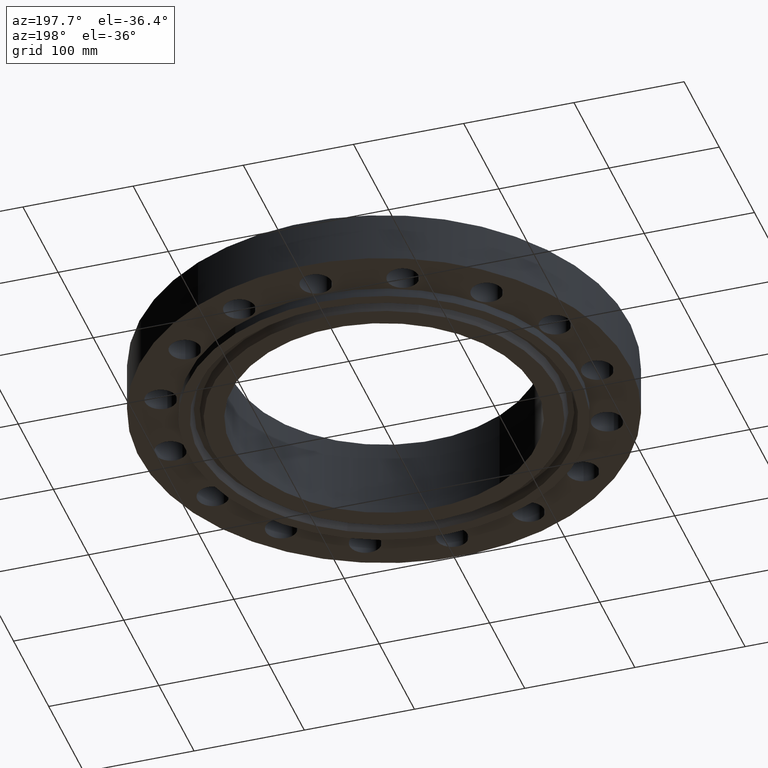
[diagram: clean part render]
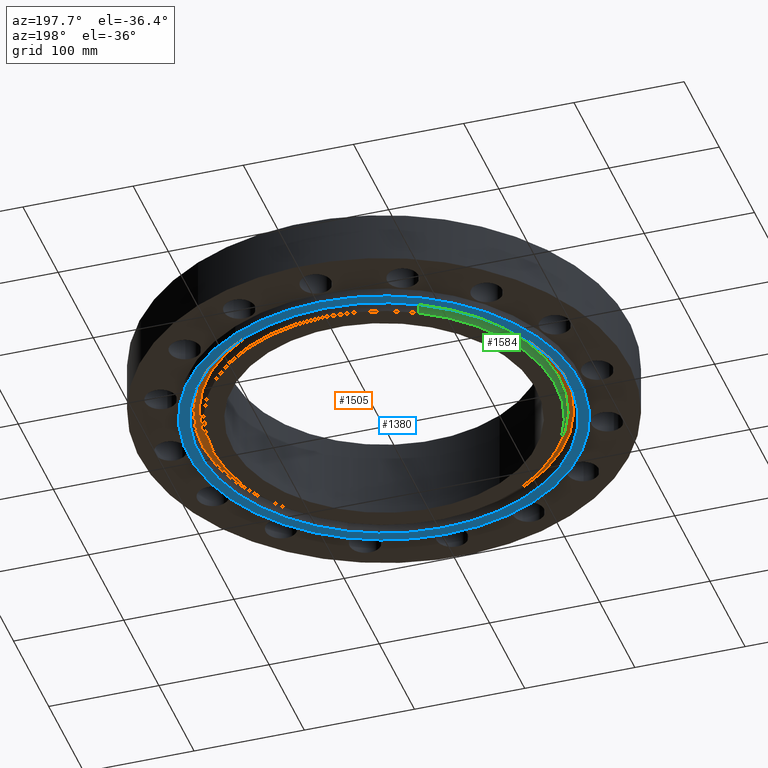
[diagram: same view with three faces highlighted in distinct colors, each labeled with its STEP entity id]
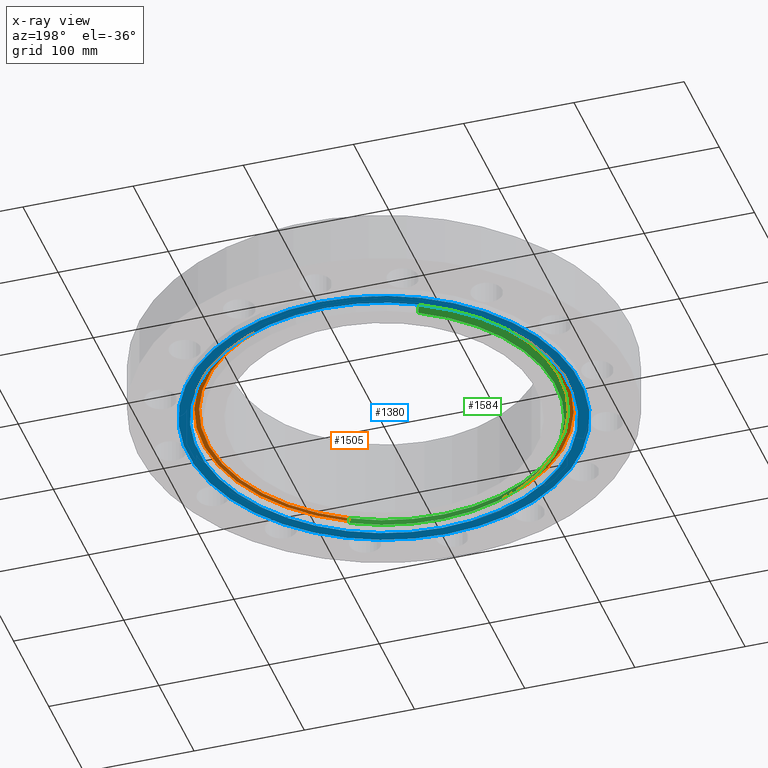
[diagram: x-ray of the same camera — body ghosted, the three highlighted faces saturated]
A machine part, auxiliary view with three faces highlighted in distinct colors.
The next image is the same camera in x-ray (body ghosted, the three faces saturated) — at least one of them is partly hidden behind the body in this view.
Their STEP definitions:

[orange] entity #1505 — the highlighted planar face has unit normal (0, 0, -1).
#423=AXIS2_PLACEMENT_3D('Plane Axis2P3D',#420,#421,#422) ;
#1427=AXIS2_PLACEMENT_3D('Circle Axis2P3D',#1425,#1426,$) ;
#1473=AXIS2_PLACEMENT_3D('Circle Axis2P3D',#1471,#1472,$) ;
#1489=AXIS2_PLACEMENT_3D('Circle Axis2P3D',#1487,#1488,$) ;
#1498=AXIS2_PLACEMENT_3D('Circle Axis2P3D',#1496,#1497,$) ;
#420=CARTESIAN_POINT('Axis2P3D Location',(0.,7.00000000003,0.)) ;
#1422=CARTESIAN_POINT('Vertex',(-3.09518786626,5.66570338558,-1.39870617276E-016)) ;
#1425=CARTESIAN_POINT('Axis2P3D Location',(0.,0.,-1.39870617276E-016)) ;
#1429=CARTESIAN_POINT('Vertex',(3.09518786626,-5.66570338558,-1.39870617276E-016)) ;
#1471=CARTESIAN_POINT('Axis2P3D Location',(0.,0.,-1.39870617276E-016)) ;
#1487=CARTESIAN_POINT('Axis2P3D Location',(0.,0.,0.)) ;
#1491=CARTESIAN_POINT('Vertex',(3.01748775097,-5.52347427856,2.88483148131E-016)) ;
#1493=CARTESIAN_POINT('Vertex',(-3.01748775097,5.52347427856,2.88483148131E-016)) ;
#1496=CARTESIAN_POINT('Axis2P3D Location',(0.,0.,0.)) ;
#421=DIRECTION('Axis2P3D Direction',(0.,0.,-0.0393700787402)) ;
#422=DIRECTION('Axis2P3D XDirection',(0.0393700787402,0.,0.)) ;
#1426=DIRECTION('Axis2P3D Direction',(0.,0.,0.0393700787402)) ;
#1472=DIRECTION('Axis2P3D Direction',(0.,0.,0.0393700787402)) ;
#1488=DIRECTION('Axis2P3D Direction',(0.,0.,-0.0393700787402)) ;
#1497=DIRECTION('Axis2P3D Direction',(0.,0.,-0.0393700787402)) ;
#1484=ORIENTED_EDGE('',*,*,#1431,.F.) ;
#1485=ORIENTED_EDGE('',*,*,#1475,.F.) ;
#1502=ORIENTED_EDGE('',*,*,#1495,.T.) ;
#1503=ORIENTED_EDGE('',*,*,#1500,.T.) ;
#1504=FACE_BOUND('',#1501,.T.) ;
#1505=ADVANCED_FACE('PartBody',(#1486,#1504),#424,.T.) ;
#1428=CIRCLE('generated circle',#1427,6.45603460189) ;
#1474=CIRCLE('generated circle',#1473,6.45603460189) ;
#1490=CIRCLE('generated circle',#1489,6.29396539816) ;
#1499=CIRCLE('generated circle',#1498,6.29396539816) ;
#1431=EDGE_CURVE('',#1423,#1430,#1428,.T.) ;
#1475=EDGE_CURVE('',#1430,#1423,#1474,.T.) ;
#1495=EDGE_CURVE('',#1492,#1494,#1490,.F.) ;
#1500=EDGE_CURVE('',#1494,#1492,#1499,.F.) ;
#1483=EDGE_LOOP('',(#1484,#1485)) ;
#1501=EDGE_LOOP('',(#1502,#1503)) ;
#1486=FACE_OUTER_BOUND('',#1483,.T.) ;
#424=PLANE('',#423) ;
#1423=VERTEX_POINT('',#1422) ;
#1430=VERTEX_POINT('',#1429) ;
#1492=VERTEX_POINT('',#1491) ;
#1494=VERTEX_POINT('',#1493) ;

[blue] entity #1380 — the highlighted planar face has unit normal (0, 0, -1).
#370=AXIS2_PLACEMENT_3D('Circle Axis2P3D',#368,#369,$) ;
#405=AXIS2_PLACEMENT_3D('Circle Axis2P3D',#403,#404,$) ;
#1356=AXIS2_PLACEMENT_3D('Plane Axis2P3D',#1353,#1354,#1355) ;
#1364=AXIS2_PLACEMENT_3D('Circle Axis2P3D',#1362,#1363,$) ;
#1373=AXIS2_PLACEMENT_3D('Circle Axis2P3D',#1371,#1372,$) ;
#368=CARTESIAN_POINT('Axis2P3D Location',(0.,0.,-0.312500000001)) ;
#372=CARTESIAN_POINT('Vertex',(-3.35597877024,-6.14307793326,-0.312500000001)) ;
#374=CARTESIAN_POINT('Vertex',(3.35597877024,6.14307793326,-0.312500000001)) ;
#403=CARTESIAN_POINT('Axis2P3D Location',(0.,0.,-0.312500000001)) ;
#1353=CARTESIAN_POINT('Axis2P3D Location',(0.,5.44000000002,-0.312500000001)) ;
#1362=CARTESIAN_POINT('Axis2P3D Location',(-2.79741234551E-016,1.1189649382E-015,-0.312500000001)) ;
#1366=CARTESIAN_POINT('Vertex',(3.16871515486,-5.80029418458,-0.312500000001)) ;
#1368=CARTESIAN_POINT('Vertex',(-3.16871515486,5.80029418458,-0.312500000001)) ;
#1371=CARTESIAN_POINT('Axis2P3D Location',(0.,1.1189649382E-015,-0.312500000001)) ;
#369=DIRECTION('Axis2P3D Direction',(0.,0.,-0.0393700787402)) ;
#404=DIRECTION('Axis2P3D Direction',(0.,0.,-0.0393700787402)) ;
#1354=DIRECTION('Axis2P3D Direction',(0.,0.,-0.0393700787402)) ;
#1355=DIRECTION('Axis2P3D XDirection',(0.0393700787402,0.,0.)) ;
#1363=DIRECTION('Axis2P3D Direction',(0.,0.,-0.0393700787402)) ;
#1372=DIRECTION('Axis2P3D Direction',(0.,0.,-0.0393700787402)) ;
#1359=ORIENTED_EDGE('',*,*,#376,.T.) ;
#1360=ORIENTED_EDGE('',*,*,#407,.T.) ;
#1377=ORIENTED_EDGE('',*,*,#1370,.F.) ;
#1378=ORIENTED_EDGE('',*,*,#1375,.F.) ;
#1379=FACE_BOUND('',#1376,.T.) ;
#1380=ADVANCED_FACE('PartBody',(#1361,#1379),#1357,.T.) ;
#371=CIRCLE('generated circle',#370,7.00000000003) ;
#406=CIRCLE('generated circle',#405,7.00000000003) ;
#1365=CIRCLE('generated circle',#1364,6.60940000003) ;
#1374=CIRCLE('generated circle',#1373,6.60940000003) ;
#376=EDGE_CURVE('',#373,#375,#371,.T.) ;
#407=EDGE_CURVE('',#375,#373,#406,.T.) ;
#1370=EDGE_CURVE('',#1367,#1369,#1365,.T.) ;
#1375=EDGE_CURVE('',#1369,#1367,#1374,.T.) ;
#1358=EDGE_LOOP('',(#1359,#1360)) ;
#1376=EDGE_LOOP('',(#1377,#1378)) ;
#1361=FACE_OUTER_BOUND('',#1358,.T.) ;
#1357=PLANE('',#1356) ;
#373=VERTEX_POINT('',#372) ;
#375=VERTEX_POINT('',#374) ;
#1367=VERTEX_POINT('',#1366) ;
#1369=VERTEX_POINT('',#1368) ;

[green] entity #1584 — the highlighted conical surface has half-angle 23 deg.
#1392=AXIS2_PLACEMENT_3D('Circle Axis2P3D',#1390,#1391,$) ;
#1546=AXIS2_PLACEMENT_3D('Circle Axis2P3D',#1544,#1545,$) ;
#1559=AXIS2_PLACEMENT_3D('Cone Axis2P3D',#1556,#1557,#1558) ;
#1385=CARTESIAN_POINT('Vertex',(-2.94396046236,5.38888347957,-0.312500000001)) ;
#1387=CARTESIAN_POINT('Vertex',(2.94396046236,-5.38888347957,-0.312500000001)) ;
#1390=CARTESIAN_POINT('Axis2P3D Location',(0.,0.,-0.312500000001)) ;
#1522=CARTESIAN_POINT('Vertex',(3.00367463732,-5.49818954363,-0.0190701156784)) ;
#1529=CARTESIAN_POINT('Vertex',(-3.00367463732,5.49818954363,-0.0190701156784)) ;
#1544=CARTESIAN_POINT('Axis2P3D Location',(0.,0.,-0.0190701156784)) ;
#1556=CARTESIAN_POINT('Axis2P3D Location',(0.,0.,-0.372500000001)) ;
#1561=CARTESIAN_POINT('Line Origine',(-2.97381754984,5.4435365116,-0.16578505784)) ;
#1566=CARTESIAN_POINT('Line Origine',(2.97381754984,-5.4435365116,-0.16578505784)) ;
#1391=DIRECTION('Axis2P3D Direction',(0.,0.,-0.0393700787402)) ;
#1545=DIRECTION('Axis2P3D Direction',(0.,0.,0.0393700787402)) ;
#1557=DIRECTION('Axis2P3D Direction',(0.,0.,0.0393700787402)) ;
#1558=DIRECTION('Axis2P3D XDirection',(-0.0188750212049,0.0345504945626,0.)) ;
#1562=DIRECTION('Vector Direction',(-0.00737505833565,0.0134999537303,0.0362403485611)) ;
#1567=DIRECTION('Vector Direction',(0.00737505833565,-0.0134999537303,0.0362403485611)) ;
#1563=VECTOR('Line Direction',#1562,0.0393700787402) ;
#1568=VECTOR('Line Direction',#1567,0.0393700787402) ;
#1579=ORIENTED_EDGE('',*,*,#1570,.F.) ;
#1580=ORIENTED_EDGE('',*,*,#1548,.F.) ;
#1581=ORIENTED_EDGE('',*,*,#1565,.T.) ;
#1582=ORIENTED_EDGE('',*,*,#1394,.F.) ;
#1584=ADVANCED_FACE('PartBody',(#1583),#1560,.T.) ;
#1393=CIRCLE('generated circle',#1392,6.14060000002) ;
#1547=CIRCLE('generated circle',#1546,6.26515359624) ;
#1560=CONICAL_SURFACE('Cone',#1559,6.11513151105,0.401425727959) ;
#1394=EDGE_CURVE('',#1388,#1386,#1393,.T.) ;
#1548=EDGE_CURVE('',#1530,#1523,#1547,.T.) ;
#1565=EDGE_CURVE('',#1530,#1386,#1564,.F.) ;
#1570=EDGE_CURVE('',#1523,#1388,#1569,.F.) ;
#1578=EDGE_LOOP('',(#1579,#1580,#1581,#1582)) ;
#1583=FACE_OUTER_BOUND('',#1578,.T.) ;
#1564=LINE('Line',#1561,#1563) ;
#1569=LINE('Line',#1566,#1568) ;
#1386=VERTEX_POINT('',#1385) ;
#1388=VERTEX_POINT('',#1387) ;
#1523=VERTEX_POINT('',#1522) ;
#1530=VERTEX_POINT('',#1529) ;